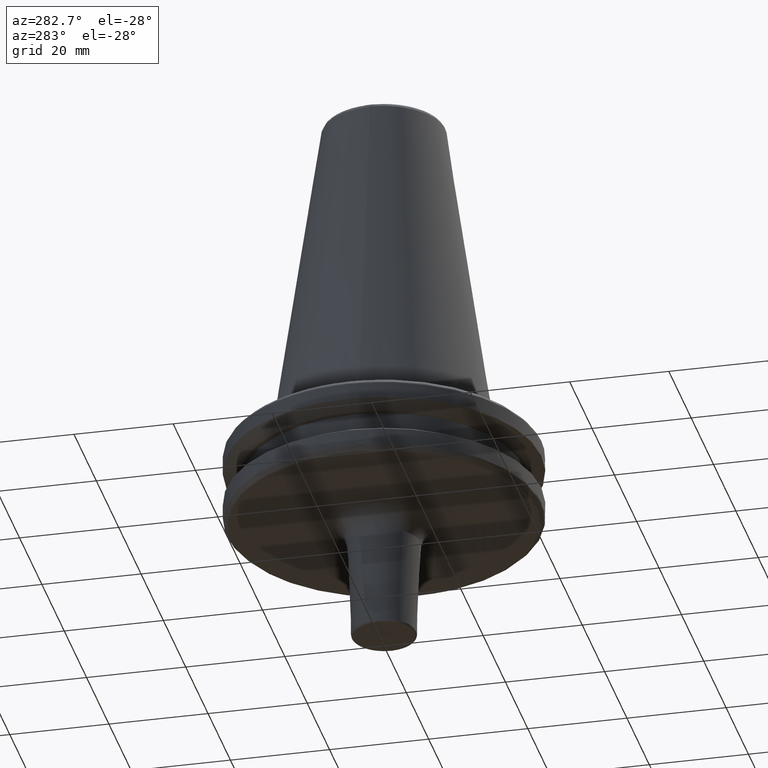
[diagram: clean part render]
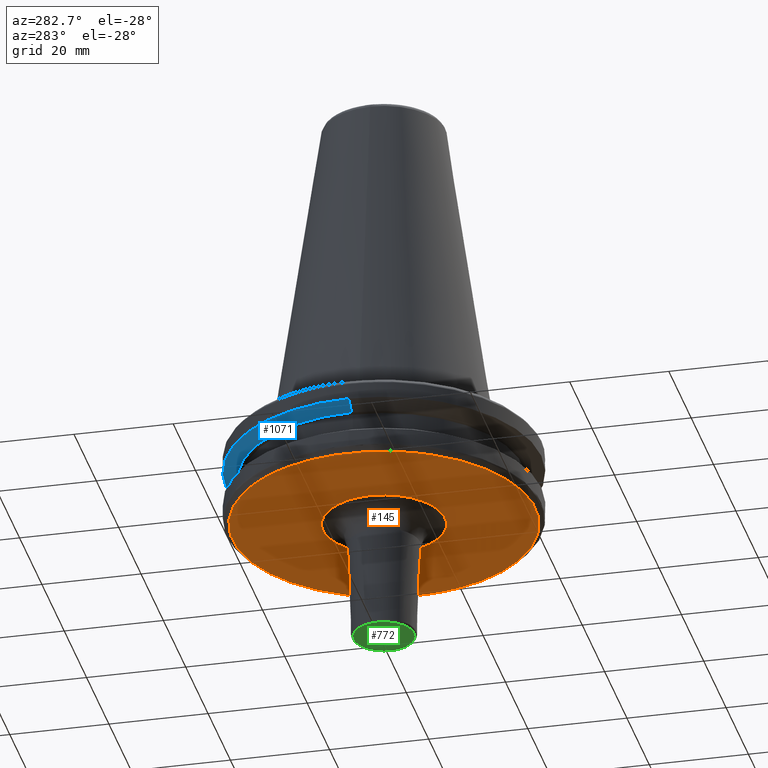
[diagram: same view with three faces highlighted in distinct colors, each labeled with its STEP entity id]
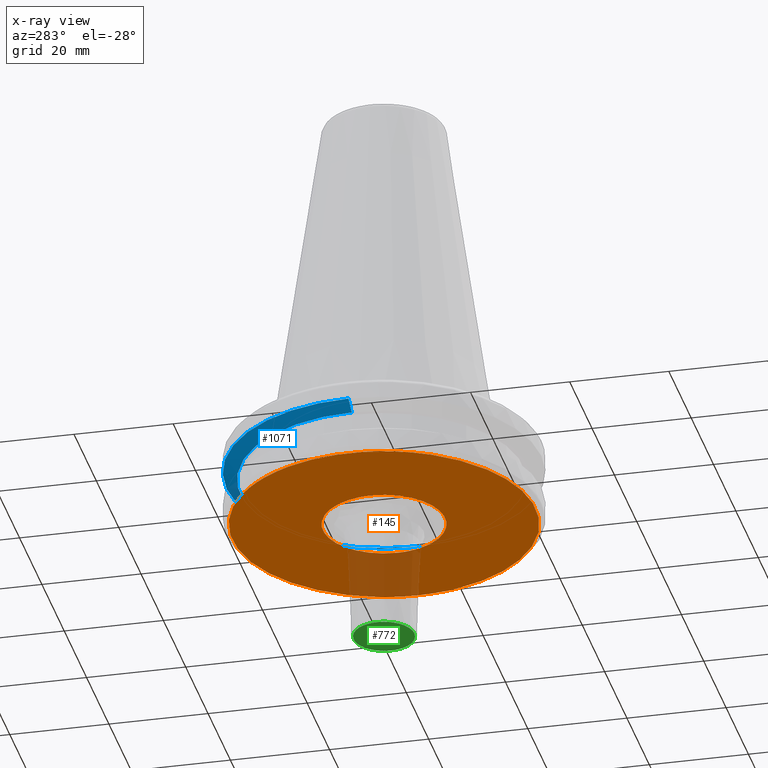
[diagram: x-ray of the same camera — body ghosted, the three highlighted faces saturated]
A machine part, auxiliary view with three faces highlighted in distinct colors.
The next image is the same camera in x-ray (body ghosted, the three faces saturated) — at least one of them is partly hidden behind the body in this view.
Their STEP definitions:

[orange] entity #145 — the highlighted planar face has unit normal (0, 0, -1).
#1 = CARTESIAN_POINT ( 'NONE',  ( 4.575392748205827900, 11.42175958990457500, -19.10000000000000900 ) ) ;
#4 = CARTESIAN_POINT ( 'NONE',  ( 28.94006249014968200, -9.948882374008352500, -19.10000000000000500 ) ) ;
#5 = CARTESIAN_POINT ( 'NONE',  ( 6.115198462860785600, -10.68037323255987700, -19.10000000000000900 ) ) ;
#9 = CARTESIAN_POINT ( 'NONE',  ( -1.589759293087005000, 12.20345401369129600, -19.09999999999999800 ) ) ;
#22 = CARTESIAN_POINT ( 'NONE',  ( -4.915476880711798600, 11.28714439127464800, -19.10000000000000500 ) ) ;
#24 = CARTESIAN_POINT ( 'NONE',  ( 12.08943301081180600, -2.287919376571267500, -19.10000000000000500 ) ) ;
#25 = CARTESIAN_POINT ( 'NONE',  ( -13.55750927079556900, -27.41669403125807100, -19.10000000000000500 ) ) ;
#36 = CARTESIAN_POINT ( 'NONE',  ( -10.23999782691165800, 6.821555645404587600, -19.10000000000000900 ) ) ;
#39 = CARTESIAN_POINT ( 'NONE',  ( 12.09430829095980900, -2.261992835330791900, -19.10000000000000900 ) ) ;
#40 = CARTESIAN_POINT ( 'NONE',  ( 29.50593695870423600, -8.050011641059509100, -19.10000000000000500 ) ) ;
#43 = CARTESIAN_POINT ( 'NONE',  ( 5.480785904378152800, -11.02970206514304000, -19.10000000000000900 ) ) ;
#44 = CARTESIAN_POINT ( 'NONE',  ( -12.06578574603771700, 2.410312631624923300, -19.10000000000000500 ) ) ;
#46 = CARTESIAN_POINT ( 'NONE',  ( 28.04473044301726900, -12.20290262157235800, -19.10000000000000100 ) ) ;
#49 = CARTESIAN_POINT ( 'NONE',  ( 28.18215722315982000, -11.88429583552771100, -19.10000000000000100 ) ) ;
#52 = CARTESIAN_POINT ( 'NONE',  ( 4.915476880713528700, -11.28714439127365500, -19.10000000000000100 ) ) ;
#58 = CARTESIAN_POINT ( 'NONE',  ( 28.44748858146412100, -11.24368615697392600, -19.10000000000000100 ) ) ;
#59 = CARTESIAN_POINT ( 'NONE',  ( 25.07711885281372900, 17.51959354323408400, -19.10000000000000100 ) ) ;
#68 = CARTESIAN_POINT ( 'NONE',  ( 4.480731697625304700, -11.45923494211556500, -19.10000000000000500 ) ) ;
#70 = CARTESIAN_POINT ( 'NONE',  ( 27.92527061286967100, -12.47325821572505000, -19.10000000000000900 ) ) ;
#77 = CARTESIAN_POINT ( 'NONE',  ( 12.06578574603750900, -2.410312631625060000, -19.10000000000000100 ) ) ;
#78 = CARTESIAN_POINT ( 'NONE',  ( 27.94464134489557200, -12.42979159005786200, -19.10000000000001200 ) ) ;
#79 = CARTESIAN_POINT ( 'NONE',  ( -29.50593695870423600, 8.050011641059509100, -19.10000000000000500 ) ) ;
#82 = CARTESIAN_POINT ( 'NONE',  ( 27.98481301560113700, -12.33908451847029400, -19.10000000000000500 ) ) ;
#83 = DIRECTION ( 'NONE',  ( 1.000000000000000000, 0.0000000000000000000, 0.0000000000000000000 ) ) ;
#87 = CARTESIAN_POINT ( 'NONE',  ( 26.29437709911257700, -15.63042418696883700, -19.10000000000000500 ) ) ;
#88 = CARTESIAN_POINT ( 'NONE',  ( 12.08006102940357900, -2.336902098186763000, -19.10000000000000900 ) ) ;
#95 = CARTESIAN_POINT ( 'NONE',  ( 4.436158478003198600, -11.47655590212973000, -19.10000000000000500 ) ) ;
#102 = CARTESIAN_POINT ( 'NONE',  ( 11.95521051104275000, -2.921072465430901000, -19.10000000000000500 ) ) ;
#103 = CARTESIAN_POINT ( 'NONE',  ( 27.01453231070431500, -14.38112937620777400, -19.10000000000000900 ) ) ;
#108 = CARTESIAN_POINT ( 'NONE',  ( 29.29697359829781100, -8.815762972852718700, -19.10000000000000500 ) ) ;
#113 = CARTESIAN_POINT ( 'NONE',  ( 27.56587331839861600, -13.27428387458943800, -19.09999999999999800 ) ) ;
#121 = CARTESIAN_POINT ( 'NONE',  ( 4.343033924115247600, -11.51212651323082300, -19.10000000000000900 ) ) ;
#129 = CARTESIAN_POINT ( 'NONE',  ( 25.63623530936496000, -16.67892256050461000, -19.10000000000000500 ) ) ;
#134 = CARTESIAN_POINT ( 'NONE',  ( 25.72060642469137200, -16.54900938329657500, -19.10000000000000500 ) ) ;
#139 = CARTESIAN_POINT ( 'NONE',  ( 10.09123774697887800, -7.041000886252597000, -19.10000000000000900 ) ) ;
#145 = ADVANCED_FACE ( 'NONE', ( #2905, #1847 ), #1008, .T. ) ;
#147 = CARTESIAN_POINT ( 'NONE',  ( 2.103333420339649000, 30.51262227300270200, -19.10000000000000100 ) ) ;
#151 = CARTESIAN_POINT ( 'NONE',  ( 25.91506848432963000, -16.24456535706762800, -19.10000000000000500 ) ) ;
#159 = CARTESIAN_POINT ( 'NONE',  ( 25.05482143306667100, -17.56072154682019400, -19.10000000000000500 ) ) ;
#177 = CARTESIAN_POINT ( 'NONE',  ( 9.876681215558880600, -7.343069720023934500, -19.10000000000000900 ) ) ;
#181 = CARTESIAN_POINT ( 'NONE',  ( 12.23810548582505600, 28.03197362945626700, -19.10000000000000500 ) ) ;
#185 = CARTESIAN_POINT ( 'NONE',  ( 9.425359613257528600, -7.929015022567612400, -19.10000000000000900 ) ) ;
#202 = CARTESIAN_POINT ( 'NONE',  ( 25.55219655712748800, -16.80738867178014600, -19.10000000000000900 ) ) ;
#206 = CARTESIAN_POINT ( 'NONE',  ( -17.19359987793792800, -25.35249706495551100, -19.10000000000000900 ) ) ;
#209 = CARTESIAN_POINT ( 'NONE',  ( 25.57975895856417400, -16.76540627108043000, -19.10000000000000100 ) ) ;
#213 = CARTESIAN_POINT ( 'NONE',  ( 22.88153702451384300, -20.29572449130178000, -19.10000000000000100 ) ) ;
#216 = CARTESIAN_POINT ( 'NONE',  ( 9.000440743636914900, -8.400066941892452700, -19.10000000000000100 ) ) ;
#218 = CARTESIAN_POINT ( 'NONE',  ( 5.091218007676277900, -30.15789762491641200, -19.10000000000000900 ) ) ;
#219 = CARTESIAN_POINT ( 'NONE',  ( 23.37016937102523100, -19.73720656645907200, -19.10000000000000500 ) ) ;
#220 = CARTESIAN_POINT ( 'NONE',  ( 4.938364931540699700, -30.18303432026915800, -19.10000000000000500 ) ) ;
#224 = CARTESIAN_POINT ( 'NONE',  ( 8.099840628484033200, -9.300588231972975400, -19.10000000000000500 ) ) ;
#226 = CARTESIAN_POINT ( 'NONE',  ( -8.158427338735364700, -29.48125659895528400, -19.10000000000000500 ) ) ;
#227 = CARTESIAN_POINT ( 'NONE',  ( 28.22432639104233900, 11.78107541670503600, -19.10000000000000500 ) ) ;
#228 = CARTESIAN_POINT ( 'NONE',  ( 7.443544722013345300, -9.833810078318924400, -19.10000000000000500 ) ) ;
#234 = CARTESIAN_POINT ( 'NONE',  ( 24.31095900104777700, -18.59161355311120500, -19.10000000000000900 ) ) ;
#240 = CARTESIAN_POINT ( 'NONE',  ( 22.45416143053250800, -20.76589565598027000, -19.10000000000000500 ) ) ;
#248 = CARTESIAN_POINT ( 'NONE',  ( 29.50593695870423600, -8.050011641059509100, -19.10000000000000500 ) ) ;
#250 = CARTESIAN_POINT ( 'NONE',  ( 22.52513206187470700, -20.68888644021010800, -19.10000000000000900 ) ) ;
#254 = CARTESIAN_POINT ( 'NONE',  ( 22.66821511925894200, -20.53202962012767000, -19.10000000000000500 ) ) ;
#255 = CARTESIAN_POINT ( 'NONE',  ( 6.644033331915112600, -10.35646410111086300, -19.10000000000000900 ) ) ;
#256 = CARTESIAN_POINT ( 'NONE',  ( 11.51212651323263500, 4.343033924110140600, -19.10000000000000500 ) ) ;
#259 = CARTESIAN_POINT ( 'NONE',  ( -4.391022105728267500, -30.26774995785368500, -19.10000000000000500 ) ) ;
#266 = CARTESIAN_POINT ( 'NONE',  ( 7.343069720027355800, 9.876681215557251600, -19.10000000000000500 ) ) ;
#267 = CARTESIAN_POINT ( 'NONE',  ( 17.87849741863398000, -24.82948193938068100, -19.10000000000000100 ) ) ;
#270 = CARTESIAN_POINT ( 'NONE',  ( 6.558184842527504400, -10.41102762153246500, -19.10000000000000500 ) ) ;
#275 = CARTESIAN_POINT ( 'NONE',  ( 19.93308098988654800, -23.26029377377305400, -19.10000000000000900 ) ) ;
#276 = CARTESIAN_POINT ( 'NONE',  ( 3.593781843145289900, 11.77938152722883200, -19.10000000000000500 ) ) ;
#281 = CARTESIAN_POINT ( 'NONE',  ( 6.381707851683468200, -10.52016527886050300, -19.10000000000000500 ) ) ;
#282 = AXIS2_PLACEMENT_3D ( 'NONE', #381, #1790, #1290 ) ;
#287 = CARTESIAN_POINT ( 'NONE',  ( -2.076837830438892100, 12.12761394368718200, -19.10000000000000900 ) ) ;
#292 = CARTESIAN_POINT ( 'NONE',  ( -4.636279539811212700, -30.23090493186514000, -19.10000000000000100 ) ) ;
#295 = CARTESIAN_POINT ( 'NONE',  ( 3.874865910807504300, -11.68097384937162700, -19.10000000000000500 ) ) ;
#297 = CARTESIAN_POINT ( 'NONE',  ( -6.115198462858513700, 10.68037323256118000, -19.10000000000000500 ) ) ;
#302 = CARTESIAN_POINT ( 'NONE',  ( 21.20610461385350800, -22.10596665135101400, -19.10000000000000100 ) ) ;
#303 = CARTESIAN_POINT ( 'NONE',  ( -10.52583497655445300, 6.385010041784552100, -19.10000000000000100 ) ) ;
#304 = CARTESIAN_POINT ( 'NONE',  ( -1.980707750522268800, -30.53825656188765000, -19.10000000000000900 ) ) ;
#308 = CARTESIAN_POINT ( 'NONE',  ( 3.211499383865427300, -11.88929713640017200, -19.10000000000000900 ) ) ;
#311 = CARTESIAN_POINT ( 'NONE',  ( -12.08943301081187200, 2.287919376571226200, -19.10000000000000500 ) ) ;
#314 = CARTESIAN_POINT ( 'NONE',  ( 14.88253584773120200, -26.72066063288397000, -19.10000000000000100 ) ) ;
#315 = VERTEX_POINT ( 'NONE', #1421 ) ;
#325 = CARTESIAN_POINT ( 'NONE',  ( 15.53753395421813000, -26.34988902405435600, -19.10000000000000900 ) ) ;
#327 = CARTESIAN_POINT ( 'NONE',  ( 16.82180190648200500, -25.56823429586928900, -19.10000000000000500 ) ) ;
#330 = CARTESIAN_POINT ( 'NONE',  ( 12.03095557274064500, -2.581159033419818900, -19.10000000000000900 ) ) ;
#331 = CARTESIAN_POINT ( 'NONE',  ( 14.31298725537405200, -27.02868588326913700, -19.10000000000000500 ) ) ;
#357 = CARTESIAN_POINT ( 'NONE',  ( -28.29883549210119800, 11.76494105805098300, -19.10000000000000500 ) ) ;
#360 = CARTESIAN_POINT ( 'NONE',  ( 2.631076435339338500, -12.02602693486898400, -19.10000000000000500 ) ) ;
#369 = CARTESIAN_POINT ( 'NONE',  ( 14.40947314747780600, -26.97737969063206300, -19.10000000000000500 ) ) ;
#370 = CARTESIAN_POINT ( 'NONE',  ( 2.214360397885292800, -12.10312272759740000, -19.10000000000000500 ) ) ;
#373 = CARTESIAN_POINT ( 'NONE',  ( 14.58823882257053300, 26.89349445919003000, -19.10000000000000500 ) ) ;
#376 = CARTESIAN_POINT ( 'NONE',  ( 14.59906577416073300, -26.87526508911176700, -19.10000000000000500 ) ) ;
#381 = CARTESIAN_POINT ( 'NONE',  ( 0.0000000000000000000, 2.166680460328873200E-015, -19.10000000000000500 ) ) ;
#394 = DIRECTION ( 'NONE',  ( 1.000000000000000000, 0.0000000000000000000, 0.0000000000000000000 ) ) ;
#408 = B_SPLINE_CURVE_WITH_KNOTS ( 'NONE', 3,
 ( #2214, #1030, #2191, #2167, #503, #2146, #2131, #2111, #2068, #2024, #1876, #1866, #1855, #1805, #1766, #1783, #1761, #1677, #1673, #1667, #1651, #1645, #1609, #1596, #1458, #1364, #2953, #1266, #1092, #1088, #1024, #962, #850, #826, #800, #782, #761, #2942, #755, #745, #732, #707, #624, #599, #573, #567, #552, #512, #2913, #485, #478, #475, #462, #445, #418, #370, #360, #308, #295, #2899, #121, #95, #68, #52, #43, #5, #281, #270, #255, #228, #224, #216, #185, #177, #139, #1062, #1101, #1040, #1051, #823, #855, #616, #806, #561, #571, #535, #549, #102, #330, #77, #88, #24, #39, #1500, #1479, #1472 ),
 .UNSPECIFIED., .F., .F.,
 ( 4, 1, 1, 1, 1, 2, 2, 1, 1, 1, 2, 2, 1, 1, 2, 2, 2, 1, 1, 1, 2, 2, 1, 1, 1, 2, 2, 1, 1, 1, 1, 2, 2, 2, 1, 1, 1, 1, 2, 2, 1, 1, 1, 2, 2, 1, 1, 2, 2, 2, 1, 1, 1, 2, 2, 1, 1, 1, 2, 2, 1, 1, 1, 1, 2, 2, 4 ),
 ( 0.0000000000000000000, 0.03124999999999987500, 0.04687499999999980600, 0.05468749999999976400, 0.05859374999999975700, 0.06054687499999977800, 0.06249999999999979200, 0.09375000000000027800, 0.1093750000000005300, 0.1171875000000006700, 0.1210937500000006900, 0.1250000000000007200, 0.1562500000000008600, 0.1718750000000008900, 0.1796875000000009700, 0.1875000000000010500, 0.2500000000000017800, 0.2812500000000022200, 0.2968750000000023900, 0.3046875000000025000, 0.3085937500000026100, 0.3125000000000026600, 0.3437500000000034400, 0.3593750000000038300, 0.3671875000000040500, 0.3710937500000041100, 0.3750000000000042200, 0.4062500000000047200, 0.4218750000000049400, 0.4296875000000050000, 0.4335937500000050500, 0.4355468750000050500, 0.4375000000000050000, 0.5000000000000057700, 0.5312500000000062200, 0.5468750000000063300, 0.5546875000000064400, 0.5585937500000065500, 0.5605468750000065500, 0.5625000000000065500, 0.5937500000000063300, 0.6093750000000061100, 0.6171875000000060000, 0.6210937500000060000, 0.6250000000000058800, 0.6562500000000055500, 0.6718750000000055500, 0.6796875000000055500, 0.6875000000000054400, 0.7500000000000050000, 0.7812500000000047700, 0.7968750000000045500, 0.8046875000000045500, 0.8085937500000045500, 0.8125000000000045500, 0.8437500000000042200, 0.8593750000000040000, 0.8671875000000038900, 0.8710937500000038900, 0.8750000000000037700, 0.9062500000000030000, 0.9218750000000026600, 0.9296875000000024400, 0.9335937500000022200, 0.9355468750000021100, 0.9375000000000020000, 1.000000000000000000 ),
 .UNSPECIFIED. ) ;
#418 = CARTESIAN_POINT ( 'NONE',  ( 2.192594682798156400, -12.10708159028217600, -19.10000000000000500 ) ) ;
#432 = CARTESIAN_POINT ( 'NONE',  ( -25.46428937167067700, -16.94027857338939600, -19.10000000000000500 ) ) ;
#443 = CARTESIAN_POINT ( 'NONE',  ( -0.7936655208069568500, -30.58432798036122000, -19.10000000000000100 ) ) ;
#445 = CARTESIAN_POINT ( 'NONE',  ( 2.146298889790486000, -12.11537480820234700, -19.10000000000000500 ) ) ;
#462 = CARTESIAN_POINT ( 'NONE',  ( 2.076837830443977000, -12.12761394368692600, -19.10000000000000500 ) ) ;
#475 = CARTESIAN_POINT ( 'NONE',  ( 1.914640436457104800, -12.15476708671448600, -19.10000000000000500 ) ) ;
#476 = CARTESIAN_POINT ( 'NONE',  ( 12.27832206123967400, 0.9382049300609607300, -19.10000000000000500 ) ) ;
#478 = CARTESIAN_POINT ( 'NONE',  ( 1.589759293103282200, -12.20345401369049100, -19.10000000000000500 ) ) ;
#481 = CARTESIAN_POINT ( 'NONE',  ( 11.45923494211533700, 4.480731697625743400, -19.10000000000000500 ) ) ;
#483 = ORIENTED_EDGE ( 'NONE', *, *, #575, .T. ) ;
#485 = CARTESIAN_POINT ( 'NONE',  ( 0.9380515848753250300, -12.27835043132595900, -19.10000000000000900 ) ) ;
#494 = CARTESIAN_POINT ( 'NONE',  ( 6.909593632673329800, 10.18081105978744100, -19.10000000000000500 ) ) ;
#503 = CARTESIAN_POINT ( 'NONE',  ( -12.15475467480174200, -1.914707524983862100, -19.10000000000000500 ) ) ;
#512 = CARTESIAN_POINT ( 'NONE',  ( -0.7522199390045507500, -12.30396597832296700, -19.10000000000001200 ) ) ;
#513 = CARTESIAN_POINT ( 'NONE',  ( 2.581159033422415000, 12.03095557274000200, -19.10000000000000500 ) ) ;
#521 = CARTESIAN_POINT ( 'NONE',  ( -2.192594682796630500, 12.10708159028225200, -19.10000000000000100 ) ) ;
#530 = CARTESIAN_POINT ( 'NONE',  ( -6.558184842526693500, 10.41102762153293100, -19.10000000000000900 ) ) ;
#535 = CARTESIAN_POINT ( 'NONE',  ( 11.58694720896247600, -4.158188476065937800, -19.10000000000000900 ) ) ;
#545 = CARTESIAN_POINT ( 'NONE',  ( -11.15587931217965000, 5.197345420173148200, -19.10000000000000500 ) ) ;
#549 = CARTESIAN_POINT ( 'NONE',  ( 11.77938152723029600, -3.593781843139356000, -19.10000000000000500 ) ) ;
#552 = CARTESIAN_POINT ( 'NONE',  ( -1.499217098364941300, -12.23549570778275200, -19.10000000000001200 ) ) ;
#557 = CARTESIAN_POINT ( 'NONE',  ( -12.23552816117459100, 1.499041766447427600, -19.09999999999999800 ) ) ;
#561 = CARTESIAN_POINT ( 'NONE',  ( 11.40154084273800600, -4.625572914648119000, -19.10000000000000500 ) ) ;
#562 = CARTESIAN_POINT ( 'NONE',  ( -20.23907096310340100, -22.95838911900774100, -19.10000000000000500 ) ) ;
#567 = CARTESIAN_POINT ( 'NONE',  ( -2.261987356208513300, -12.09430930512829900, -19.09999999999999800 ) ) ;
#571 = CARTESIAN_POINT ( 'NONE',  ( 11.42175958990446500, -4.575392748206257700, -19.10000000000000500 ) ) ;
#573 = CARTESIAN_POINT ( 'NONE',  ( -2.287919376571583700, -12.08943301081174400, -19.10000000000000500 ) ) ;
#575 = EDGE_CURVE ( 'NONE', #1414, #1607, #2754, .T. ) ;
#590 = CARTESIAN_POINT ( 'NONE',  ( -7.396785857642844200, 29.70357443817780300, -19.10000000000000100 ) ) ;
#599 = CARTESIAN_POINT ( 'NONE',  ( -2.336902098187377600, -12.08006102940346300, -19.10000000000000500 ) ) ;
#608 = AXIS2_PLACEMENT_3D ( 'NONE', #2865, #1513, #83 ) ;
#616 = CARTESIAN_POINT ( 'NONE',  ( 11.30206053190039700, -4.865318118943555700, -19.10000000000000100 ) ) ;
#624 = CARTESIAN_POINT ( 'NONE',  ( -2.410312631626109000, -12.06578574603731500, -19.10000000000000900 ) ) ;
#627 = CARTESIAN_POINT ( 'NONE',  ( -25.54018883534800800, 16.93931054832113100, -19.10000000000000500 ) ) ;
#637 = CARTESIAN_POINT ( 'NONE',  ( -3.335826507667983200, 30.41349938460541600, -19.10000000000000100 ) ) ;
#650 = CARTESIAN_POINT ( 'NONE',  ( 26.66158410836062100, 14.98553842598051500, -19.10000000000000500 ) ) ;
#670 = CARTESIAN_POINT ( 'NONE',  ( -24.35471234555335200, 18.50002675126641800, -19.10000000000000500 ) ) ;
#676 = B_SPLINE_CURVE_WITH_KNOTS ( 'NONE', 3,
 ( #40, #108, #4, #58, #49, #46, #82, #78, #70, #113, #103, #87, #151, #134, #129, #209, #202, #159, #234, #219, #213, #254, #250, #240, #302, #275, #267, #327, #325, #314, #376, #369, #331, #2917, #2951, #2980, #3010, #2704, #2699, #1444, #2784, #1612, #1869, #1792, #2821, #218, #220, #840, #825, #815, #808, #443, #304, #769, #1840, #259, #2536, #292, #938, #2365, #1682, #226, #926, #941, #1857, #1981, #1437, #1617, #2171, #2503, #25, #2555, #1189, #2060, #1715, #206, #1913, #562, #2859, #1283, #1629, #964, #2741, #1029, #1257, #1087, #1952, #787, #775, #432, #2247, #1879, #2576, #1402, #2648, #1904, #1666, #1676, #735, #2963, #1391, #2920 ),
 .UNSPECIFIED., .F., .F.,
 ( 4, 1, 1, 1, 1, 2, 2, 1, 1, 1, 1, 2, 2, 1, 1, 1, 2, 2, 2, 1, 1, 1, 2, 2, 1, 1, 1, 1, 2, 2, 1, 1, 1, 1, 2, 2, 2, 1, 1, 1, 1, 2, 2, 1, 1, 1, 1, 2, 2, 1, 1, 1, 2, 2, 2, 1, 1, 1, 2, 2, 1, 1, 1, 1, 2, 2, 1, 1, 1, 1, 2, 2, 4 ),
 ( 0.0000000000000000000, 0.03125000000000043000, 0.04687500000000063800, 0.05468750000000073600, 0.05859375000000075600, 0.06054687500000074200, 0.06250000000000072200, 0.09375000000000025000, 0.1093750000000000400, 0.1171874999999999200, 0.1210937499999997900, 0.1230468749999997600, 0.1249999999999997400, 0.1562499999999992200, 0.1718749999999989700, 0.1796874999999988600, 0.1835937499999988100, 0.1874999999999987500, 0.2499999999999989500, 0.2812499999999990000, 0.2968749999999991100, 0.3046874999999991700, 0.3085937499999991700, 0.3124999999999991100, 0.3437499999999990600, 0.3593749999999990600, 0.3671874999999990600, 0.3710937499999991100, 0.3730468749999991700, 0.3749999999999991700, 0.4062499999999991100, 0.4218749999999990600, 0.4296874999999990600, 0.4335937499999990600, 0.4355468749999990600, 0.4374999999999990600, 0.4999999999999995000, 0.5312499999999997800, 0.5468749999999998900, 0.5546875000000000000, 0.5585937500000000000, 0.5605468750000001100, 0.5625000000000001100, 0.5937500000000005600, 0.6093750000000007800, 0.6171875000000008900, 0.6210937500000008900, 0.6230468750000008900, 0.6250000000000008900, 0.6562500000000010000, 0.6718750000000010000, 0.6796875000000010000, 0.6835937500000011100, 0.6875000000000011100, 0.7500000000000013300, 0.7812500000000013300, 0.7968750000000013300, 0.8046875000000013300, 0.8085937500000012200, 0.8125000000000012200, 0.8437500000000014400, 0.8593750000000015500, 0.8671875000000015500, 0.8710937500000015500, 0.8730468750000015500, 0.8750000000000015500, 0.9062500000000016700, 0.9218750000000017800, 0.9296875000000017800, 0.9335937500000017800, 0.9355468750000017800, 0.9375000000000017800, 1.000000000000000000 ),
 .UNSPECIFIED. ) ;
#684 = CARTESIAN_POINT ( 'NONE',  ( 18.64294495310518600, 24.24904771131965500, -19.10000000000000900 ) ) ;
#692 = CARTESIAN_POINT ( 'NONE',  ( 5.798126224598956200, 30.03039269424756300, -19.10000000000000100 ) ) ;
#697 = CARTESIAN_POINT ( 'NONE',  ( 12.92802695592982500, 27.71772311958008600, -19.10000000000000900 ) ) ;
#703 = CIRCLE ( 'NONE', #608, 30.58435880041008700 ) ;
#707 = CARTESIAN_POINT ( 'NONE',  ( -2.581159033421773300, -12.03095557274028600, -19.10000000000000900 ) ) ;
#711 = CARTESIAN_POINT ( 'NONE',  ( 19.38055795302008400, 23.66050113822976500, -19.10000000000001200 ) ) ;
#718 = ORIENTED_EDGE ( 'NONE', *, *, #2955, .T. ) ;
#724 = VERTEX_POINT ( 'NONE', #670 ) ;
#731 = CARTESIAN_POINT ( 'NONE',  ( 15.99211500375794700, 26.07096171698068000, -19.10000000000000900 ) ) ;
#732 = CARTESIAN_POINT ( 'NONE',  ( -2.921072465434252600, -11.95521051104213400, -19.10000000000000900 ) ) ;
#733 = CARTESIAN_POINT ( 'NONE',  ( -12.30399840127872200, 1.506805225884013700E-015, -19.10000000000000500 ) ) ;
#735 = CARTESIAN_POINT ( 'NONE',  ( -27.88382002489398900, -12.56563911166203700, -19.10000000000000900 ) ) ;
#743 = CARTESIAN_POINT ( 'NONE',  ( 6.256069620680725600, 29.93772805485906800, -19.10000000000000900 ) ) ;
#745 = CARTESIAN_POINT ( 'NONE',  ( -3.593781843143816400, -11.77938152722946300, -19.10000000000000100 ) ) ;
#750 = CARTESIAN_POINT ( 'NONE',  ( 12.15475467480173700, 1.914707524975818300, -19.09999999999999800 ) ) ;
#755 = CARTESIAN_POINT ( 'NONE',  ( -4.158188476068488600, -11.58694720896200400, -19.10000000000000900 ) ) ;
#761 = CARTESIAN_POINT ( 'NONE',  ( -4.625572914649064100, -11.40154084273750700, -19.10000000000001200 ) ) ;
#764 = CARTESIAN_POINT ( 'NONE',  ( 11.02970206514631500, 5.480785904371954200, -19.10000000000000500 ) ) ;
#769 = CARTESIAN_POINT ( 'NONE',  ( -3.359542261740482900, -30.40384640239971500, -19.10000000000000500 ) ) ;
#773 = CARTESIAN_POINT ( 'NONE',  ( 6.776350166943471400, 10.26996098883152400, -19.10000000000000500 ) ) ;
#775 = CARTESIAN_POINT ( 'NONE',  ( -25.40531514043783900, -17.02859819238312900, -19.10000000000000500 ) ) ;
#782 = CARTESIAN_POINT ( 'NONE',  ( -4.721653314928516900, -11.36209706048007100, -19.10000000000000100 ) ) ;
#783 = CARTESIAN_POINT ( 'NONE',  ( 2.336902098187575700, 12.08006102940337600, -19.10000000000000500 ) ) ;
#786 = CARTESIAN_POINT ( 'NONE',  ( 24.03691940912555600, 18.91573389369128600, -19.10000000000000500 ) ) ;
#787 = CARTESIAN_POINT ( 'NONE',  ( -25.31652938757393300, -17.16082103678996200, -19.10000000000000100 ) ) ;
#796 = CARTESIAN_POINT ( 'NONE',  ( -2.631076435329491300, 12.02602693487259500, -19.10000000000000900 ) ) ;
#800 = CARTESIAN_POINT ( 'NONE',  ( -4.865318118946534700, -11.30206053189878700, -19.10000000000000500 ) ) ;
#803 = CARTESIAN_POINT ( 'NONE',  ( -7.443544722004620700, 9.833810078324919600, -19.10000000000001200 ) ) ;
#805 = CARTESIAN_POINT ( 'NONE',  ( -18.50002675274544500, 24.35471234442987100, -19.10000000000000500 ) ) ;
#806 = CARTESIAN_POINT ( 'NONE',  ( 11.36209706048103900, -4.721653314926724600, -19.10000000000000500 ) ) ;
#808 = CARTESIAN_POINT ( 'NONE',  ( 1.587331041613742700, -30.58428776442982800, -19.10000000000000500 ) ) ;
#812 = CARTESIAN_POINT ( 'NONE',  ( -11.36209706048117200, 4.721653314925952700, -19.10000000000000900 ) ) ;
#814 = CARTESIAN_POINT ( 'NONE',  ( 19.01361294775681200, 23.95638265829615000, -19.09999999999999800 ) ) ;
#815 = CARTESIAN_POINT ( 'NONE',  ( 3.166151006705770800, -30.46140382597060600, -19.10000000000001200 ) ) ;
#818 = CARTESIAN_POINT ( 'NONE',  ( 22.71169545599505600, 20.49349008205810900, -19.10000000000000900 ) ) ;
#821 = CARTESIAN_POINT ( 'NONE',  ( -12.30399840127872200, 1.506805225884013700E-015, -19.10000000000000500 ) ) ;
#823 = CARTESIAN_POINT ( 'NONE',  ( 10.83913292727201000, -5.848637723408895500, -19.10000000000000500 ) ) ;
#825 = CARTESIAN_POINT ( 'NONE',  ( 4.783350766199017600, -30.20798338819395200, -19.10000000000000500 ) ) ;
#826 = CARTESIAN_POINT ( 'NONE',  ( -5.197345420180442800, -11.15587931217654300, -19.10000000000000500 ) ) ;
#840 = CARTESIAN_POINT ( 'NONE',  ( 4.836401133027773200, -30.19953865469284100, -19.10000000000000100 ) ) ;
#844 = CARTESIAN_POINT ( 'NONE',  ( -18.50002675274544500, 24.35471234442987100, -19.10000000000000500 ) ) ;
#850 = CARTESIAN_POINT ( 'NONE',  ( -5.848637723415699000, -10.83913292726833800, -19.10000000000000500 ) ) ;
#853 = CARTESIAN_POINT ( 'NONE',  ( 26.46695125748617600, 15.32790333300081500, -19.10000000000000900 ) ) ;
#855 = CARTESIAN_POINT ( 'NONE',  ( 11.15587931217929800, -5.197345420175336600, -19.10000000000000500 ) ) ;
#860 = CARTESIAN_POINT ( 'NONE',  ( 0.4531822849060669900, 30.59235866177671400, -19.10000000000000500 ) ) ;
#861 = CARTESIAN_POINT ( 'NONE',  ( 26.58403738893923300, 15.12268211273652300, -19.10000000000000100 ) ) ;
#877 = CARTESIAN_POINT ( 'NONE',  ( 12.72171218949350900, 27.81364574513149900, -19.10000000000000900 ) ) ;
#887 = CARTESIAN_POINT ( 'NONE',  ( -8.767786026824518700, 29.30104552520869300, -19.10000000000000500 ) ) ;
#897 = CARTESIAN_POINT ( 'NONE',  ( 29.18634062978594200, 9.221269143563914000, -19.10000000000000500 ) ) ;
#913 = CARTESIAN_POINT ( 'NONE',  ( -8.917516567687371800, 29.25582015750815400, -19.10000000000000500 ) ) ;
#925 = CARTESIAN_POINT ( 'NONE',  ( 13.06536007812701200, 27.65325169537482700, -19.10000000000000100 ) ) ;
#926 = CARTESIAN_POINT ( 'NONE',  ( -8.850750154841392700, -29.27696876187939500, -19.10000000000000500 ) ) ;
#930 = CARTESIAN_POINT ( 'NONE',  ( 26.18838791784893500, 15.80329267786272900, -19.10000000000000500 ) ) ;
#938 = CARTESIAN_POINT ( 'NONE',  ( -4.683322544848318900, -30.22365628541788900, -19.10000000000000500 ) ) ;
#941 = CARTESIAN_POINT ( 'NONE',  ( -9.195643051181685100, -29.16949528698672400, -19.10000000000000900 ) ) ;
#962 = CARTESIAN_POINT ( 'NONE',  ( -6.385010041790111200, -10.52583497655208300, -19.10000000000000500 ) ) ;
#964 = CARTESIAN_POINT ( 'NONE',  ( -22.23347045905034500, -21.00201711043238700, -19.10000000000000100 ) ) ;
#965 = CARTESIAN_POINT ( 'NONE',  ( 21.40627702113345900, 21.88112117654264600, -19.10000000000000500 ) ) ;
#967 = CARTESIAN_POINT ( 'NONE',  ( 30.58435880041816200, 0.0000000000000000000, -19.10000000000000500 ) ) ;
#971 = CARTESIAN_POINT ( 'NONE',  ( 26.70070361132738800, 14.91571867381870400, -19.10000000000000100 ) ) ;
#974 = CARTESIAN_POINT ( 'NONE',  ( 27.46611760510352000, 13.47920850658973700, -19.10000000000000900 ) ) ;
#982 = CARTESIAN_POINT ( 'NONE',  ( -1.277990131494122400, 30.55800543620354400, -19.10000000000000500 ) ) ;
#991 = DIRECTION ( 'NONE',  ( -0.0000000000000000000, -0.0000000000000000000, 1.000000000000000000 ) ) ;
#997 = CARTESIAN_POINT ( 'NONE',  ( 12.11537091364809600, 2.146319940524676000, -19.10000000000000500 ) ) ;
#999 = CARTESIAN_POINT ( 'NONE',  ( -1.754889633223906300, 30.53434994063401200, -19.10000000000000500 ) ) ;
#1002 = CARTESIAN_POINT ( 'NONE',  ( 10.52016527886208200, 6.381707851680481300, -19.10000000000000500 ) ) ;
#1004 = CARTESIAN_POINT ( 'NONE',  ( -12.44675998882116000, 27.93716668423903100, -19.10000000000000500 ) ) ;
#1005 = CARTESIAN_POINT ( 'NONE',  ( -12.65743148084894200, 27.84302147053579500, -19.10000000000000500 ) ) ;
#1008 = PLANE ( 'NONE',  #282 ) ;
#1010 = CARTESIAN_POINT ( 'NONE',  ( 5.848637723409385800, 10.83913292727089400, -19.10000000000000500 ) ) ;
#1024 = CARTESIAN_POINT ( 'NONE',  ( -6.776350166943017500, -10.26996098883171300, -19.10000000000000500 ) ) ;
#1025 = CARTESIAN_POINT ( 'NONE',  ( 2.261987356208235300, 12.09430930512834300, -19.10000000000000500 ) ) ;
#1029 = CARTESIAN_POINT ( 'NONE',  ( -22.95981042903576300, -20.22301021334099100, -19.10000000000000900 ) ) ;
#1030 = CARTESIAN_POINT ( 'NONE',  ( -12.30399840127872200, -0.3761975953331360100, -19.10000000000000100 ) ) ;
#1032 = CARTESIAN_POINT ( 'NONE',  ( -3.874865910794570700, 11.68097384937635600, -19.10000000000000100 ) ) ;
#1037 = CARTESIAN_POINT ( 'NONE',  ( -9.000440743636756800, 8.400066941893980400, -19.10000000000000500 ) ) ;
#1040 = CARTESIAN_POINT ( 'NONE',  ( 10.26996098883145000, -6.776350166943503300, -19.10000000000000500 ) ) ;
#1049 = CARTESIAN_POINT ( 'NONE',  ( -11.42175958990440600, 4.575392748206296800, -19.10000000000000900 ) ) ;
#1051 = CARTESIAN_POINT ( 'NONE',  ( 10.52583497655418300, -6.385010041786225400, -19.10000000000000500 ) ) ;
#1062 = CARTESIAN_POINT ( 'NONE',  ( 10.18081105978801800, -6.909593632672125500, -19.10000000000000500 ) ) ;
#1075 = CARTESIAN_POINT ( 'NONE',  ( 0.0000000000000000000, 0.0000000000000000000, -19.10000000000000500 ) ) ;
#1076 = EDGE_CURVE ( 'NONE', #1492, #315, #2079, .T. ) ;
#1087 = CARTESIAN_POINT ( 'NONE',  ( -24.67913322280990200, -18.07380832753302600, -19.10000000000000500 ) ) ;
#1088 = CARTESIAN_POINT ( 'NONE',  ( -6.821555645405012100, -10.23999782691106800, -19.10000000000000500 ) ) ;
#1092 = CARTESIAN_POINT ( 'NONE',  ( -6.909593632673636200, -10.18081105978681600, -19.10000000000000500 ) ) ;
#1101 = CARTESIAN_POINT ( 'NONE',  ( 10.23999782691169000, -6.821555645404217200, -19.10000000000000500 ) ) ;
#1155 = CARTESIAN_POINT ( 'NONE',  ( 28.79848820868595600, 10.36927195262887700, -19.10000000000000500 ) ) ;
#1157 = CARTESIAN_POINT ( 'NONE',  ( 16.18968749047009200, 25.94803225022423700, -19.10000000000000900 ) ) ;
#1189 = CARTESIAN_POINT ( 'NONE',  ( -14.03061632106972200, -27.17633901377901000, -19.10000000000000900 ) ) ;
#1198 = CARTESIAN_POINT ( 'NONE',  ( 24.51742230446014800, 18.28446092688399100, -19.10000000000000500 ) ) ;
#1203 = CARTESIAN_POINT ( 'NONE',  ( 16.32111855271079600, 25.86556262578678700, -19.10000000000000100 ) ) ;
#1208 = CARTESIAN_POINT ( 'NONE',  ( -0.4908188656923748200, 30.58687863642091600, -19.10000000000000900 ) ) ;
#1233 = CARTESIAN_POINT ( 'NONE',  ( 12.10312272759716000, 2.214360397885985600, -19.10000000000000900 ) ) ;
#1243 = CARTESIAN_POINT ( 'NONE',  ( 10.35646410110988700, 6.644033331916425300, -19.10000000000000500 ) ) ;
#1255 = CARTESIAN_POINT ( 'NONE',  ( 4.865318118943767100, 11.30206053189991000, -19.10000000000000500 ) ) ;
#1257 = CARTESIAN_POINT ( 'NONE',  ( -23.78688261721307700, -19.25759772824421400, -19.10000000000000100 ) ) ;
#1261 = CARTESIAN_POINT ( 'NONE',  ( 0.7522199389797370500, 12.30396597832173600, -19.10000000000000500 ) ) ;
#1266 = CARTESIAN_POINT ( 'NONE',  ( -7.041000886255102600, -10.09123774697688700, -19.10000000000000100 ) ) ;
#1268 = CARTESIAN_POINT ( 'NONE',  ( -4.343033924110705400, 11.51212651323248600, -19.10000000000000500 ) ) ;
#1278 = CARTESIAN_POINT ( 'NONE',  ( -9.876681215558663900, 7.343069720025941800, -19.10000000000000900 ) ) ;
#1282 = CARTESIAN_POINT ( 'NONE',  ( -9.668279344121133400, 29.01896080072954100, -19.10000000000000500 ) ) ;
#1283 = CARTESIAN_POINT ( 'NONE',  ( -21.86129013470800300, -21.39082914621904400, -19.10000000000000100 ) ) ;
#1288 = CARTESIAN_POINT ( 'NONE',  ( 2.338937091250613300, 30.49485090081023100, -19.10000000000000100 ) ) ;
#1289 = CARTESIAN_POINT ( 'NONE',  ( -11.77938152723118900, 3.593781843138760900, -19.10000000000000900 ) ) ;
#1290 = DIRECTION ( 'NONE',  ( -1.000000000000000000, 0.0000000000000000000, -0.0000000000000000000 ) ) ;
#1295 = CIRCLE ( 'NONE', #1919, 30.58435880041008700 ) ;
#1297 = CARTESIAN_POINT ( 'NONE',  ( 29.50593695887979000, 8.050011640416025600, -19.10000000000000500 ) ) ;
#1309 = DIRECTION ( 'NONE',  ( 1.000000000000000000, 0.0000000000000000000, 0.0000000000000000000 ) ) ;
#1313 = CARTESIAN_POINT ( 'NONE',  ( 20.48123999505939400, 22.74936446789017100, -19.10000000000000100 ) ) ;
#1335 = CARTESIAN_POINT ( 'NONE',  ( 13.13240365255261600, 27.62148087363473100, -19.10000000000000500 ) ) ;
#1336 = VERTEX_POINT ( 'NONE', #2996 ) ;
#1348 = CARTESIAN_POINT ( 'NONE',  ( 2.575749856820219300, 30.47575675141769800, -19.10000000000000500 ) ) ;
#1358 = CARTESIAN_POINT ( 'NONE',  ( 11.26206975055332500, 28.44666309692501500, -19.10000000000000100 ) ) ;
#1364 = CARTESIAN_POINT ( 'NONE',  ( -7.929015022573338500, -9.425359613252993500, -19.10000000000000500 ) ) ;
#1374 = CARTESIAN_POINT ( 'NONE',  ( 4.194626064597124500, 30.30646449917461300, -19.10000000000000500 ) ) ;
#1388 = CARTESIAN_POINT ( 'NONE',  ( -6.159607642682074100, 29.98451923137153200, -19.10000000000000500 ) ) ;
#1391 = CARTESIAN_POINT ( 'NONE',  ( -29.08795742227681900, -9.581875916355663500, -19.09999999999999800 ) ) ;
#1402 = CARTESIAN_POINT ( 'NONE',  ( -27.28631539589520500, -13.82611176813281700, -19.10000000000000500 ) ) ;
#1406 = CARTESIAN_POINT ( 'NONE',  ( 25.60981177358732800, 16.74023069123413500, -19.10000000000000500 ) ) ;
#1414 = VERTEX_POINT ( 'NONE', #805 ) ;
#1418 = EDGE_CURVE ( 'NONE', #2338, #315, #676, .T. ) ;
#1421 = CARTESIAN_POINT ( 'NONE',  ( -29.50593695887981500, -8.050011640415929600, -19.10000000000000500 ) ) ;
#1432 = CARTESIAN_POINT ( 'NONE',  ( -2.229972106739516000, 30.50583071842478200, -19.10000000000000500 ) ) ;
#1437 = CARTESIAN_POINT ( 'NONE',  ( -9.489238364085435900, -29.07503083623364400, -19.10000000000000900 ) ) ;
#1442 = CARTESIAN_POINT ( 'NONE',  ( 11.88929713640704800, 3.211499383846046400, -19.10000000000000900 ) ) ;
#1444 = CARTESIAN_POINT ( 'NONE',  ( 9.640580262597561400, -29.02520083562890100, -19.10000000000000500 ) ) ;
#1448 = CARTESIAN_POINT ( 'NONE',  ( 9.300588231967765300, 8.099840628486516500, -19.10000000000000100 ) ) ;
#1455 = CARTESIAN_POINT ( 'NONE',  ( 4.625572914648183000, 11.40154084273785700, -19.10000000000000500 ) ) ;
#1458 = CARTESIAN_POINT ( 'NONE',  ( -8.400066941895728300, -9.000440743634326800, -19.10000000000000500 ) ) ;
#1463 = CARTESIAN_POINT ( 'NONE',  ( -0.9380515848536242800, 12.27835043132703600, -19.10000000000000900 ) ) ;
#1470 = CARTESIAN_POINT ( 'NONE',  ( -4.480731697625516000, 11.45923494211544600, -19.10000000000000100 ) ) ;
#1472 = CARTESIAN_POINT ( 'NONE',  ( 12.30399840127872200, 0.0000000000000000000, -19.10000000000000500 ) ) ;
#1477 = CARTESIAN_POINT ( 'NONE',  ( -10.18081105978794000, 6.909593632672831600, -19.10000000000000500 ) ) ;
#1479 = CARTESIAN_POINT ( 'NONE',  ( 12.30399840127872800, -0.7527507311283576600, -19.10000000000000900 ) ) ;
#1485 = CARTESIAN_POINT ( 'NONE',  ( -12.03095557274103600, 2.581159033419560900, -19.10000000000000500 ) ) ;
#1492 = VERTEX_POINT ( 'NONE', #79 ) ;
#1500 = CARTESIAN_POINT ( 'NONE',  ( 12.23552816117458500, -1.499041766451987100, -19.10000000000000500 ) ) ;
#1513 = DIRECTION ( 'NONE',  ( -0.0000000000000000000, -0.0000000000000000000, 1.000000000000000000 ) ) ;
#1531 = CARTESIAN_POINT ( 'NONE',  ( 1.553459315967854200, 30.54770834860802300, -19.10000000000000900 ) ) ;
#1537 = CARTESIAN_POINT ( 'NONE',  ( -14.11067696108144500, 27.14738034496676300, -19.10000000000000500 ) ) ;
#1543 = CARTESIAN_POINT ( 'NONE',  ( -28.99013299704189700, 9.940434568560412700, -19.10000000000000100 ) ) ;
#1555 = CARTESIAN_POINT ( 'NONE',  ( 29.50593695887979000, 8.050011640416025600, -19.10000000000000500 ) ) ;
#1560 = CARTESIAN_POINT ( 'NONE',  ( -10.70938079741142000, 28.66019770656558000, -19.10000000000000100 ) ) ;
#1566 = ORIENTED_EDGE ( 'NONE', *, *, #1846, .T. ) ;
#1567 = CARTESIAN_POINT ( 'NONE',  ( 7.517538265328743900, 29.67087649393396000, -19.10000000000000500 ) ) ;
#1594 = CARTESIAN_POINT ( 'NONE',  ( 28.13442549670037700, 11.99570152419388200, -19.10000000000000500 ) ) ;
#1596 = CARTESIAN_POINT ( 'NONE',  ( -9.300588231966422400, -8.099840628489218400, -19.10000000000000100 ) ) ;
#1607 = VERTEX_POINT ( 'NONE', #1297 ) ;
#1609 = CARTESIAN_POINT ( 'NONE',  ( -9.833810078318340000, -7.443544722012564600, -19.10000000000000100 ) ) ;
#1612 = CARTESIAN_POINT ( 'NONE',  ( 8.754606771855487000, -29.31622083907685900, -19.10000000000000100 ) ) ;
#1617 = CARTESIAN_POINT ( 'NONE',  ( -10.34692081642918300, -28.79347578717342800, -19.10000000000000500 ) ) ;
#1628 = CARTESIAN_POINT ( 'NONE',  ( 24.61278002360990800, 18.15588099004128300, -19.10000000000000500 ) ) ;
#1629 = CARTESIAN_POINT ( 'NONE',  ( -22.08505440506140600, -21.15804733461203200, -19.10000000000000100 ) ) ;
#1645 = CARTESIAN_POINT ( 'NONE',  ( -10.35646410111093000, -6.644033331915206700, -19.10000000000000100 ) ) ;
#1651 = CARTESIAN_POINT ( 'NONE',  ( -10.41102762153343200, -6.558184842526404000, -19.10000000000000100 ) ) ;
#1666 = CARTESIAN_POINT ( 'NONE',  ( -27.81895210720312800, -12.70861568514636500, -19.10000000000000500 ) ) ;
#1667 = CARTESIAN_POINT ( 'NONE',  ( -10.52016527886224800, -6.381707851681483100, -19.10000000000000500 ) ) ;
#1673 = CARTESIAN_POINT ( 'NONE',  ( -10.68037323256259600, -6.115198462857703600, -19.09999999999999800 ) ) ;
#1675 = CARTESIAN_POINT ( 'NONE',  ( 16.98334930198293300, 25.44334661411777900, -19.10000000000000500 ) ) ;
#1676 = CARTESIAN_POINT ( 'NONE',  ( -27.86171205598864400, -12.61459124129725500, -19.10000000000000100 ) ) ;
#1677 = CARTESIAN_POINT ( 'NONE',  ( -11.02970206514666400, -5.480785904374036100, -19.10000000000000100 ) ) ;
#1679 = CARTESIAN_POINT ( 'NONE',  ( 11.56461090865663100, 4.203100779352129600, -19.10000000000000500 ) ) ;
#1682 = CARTESIAN_POINT ( 'NONE',  ( -6.763633612821551300, -29.84719582226912800, -19.10000000000000500 ) ) ;
#1691 = CARTESIAN_POINT ( 'NONE',  ( 7.929015022572167800, 9.425359613255365000, -19.10000000000000500 ) ) ;
#1702 = CARTESIAN_POINT ( 'NONE',  ( 4.158188476069328800, 11.58694720896163900, -19.10000000000000900 ) ) ;
#1711 = CARTESIAN_POINT ( 'NONE',  ( -1.914640436447607300, 12.15476708671496000, -19.10000000000000500 ) ) ;
#1715 = CARTESIAN_POINT ( 'NONE',  ( -15.74490649238654400, -26.27680638947031300, -19.10000000000000900 ) ) ;
#1721 = CARTESIAN_POINT ( 'NONE',  ( -5.480785904375125900, 11.02970206514476800, -19.10000000000000500 ) ) ;
#1723 = CARTESIAN_POINT ( 'NONE',  ( 28.31382758094056800, 11.56430445685524000, -19.10000000000000900 ) ) ;
#1735 = CARTESIAN_POINT ( 'NONE',  ( -10.26996098883141800, 6.776350166943712900, -19.10000000000000900 ) ) ;
#1740 = CARTESIAN_POINT ( 'NONE',  ( 16.38572052405262600, 25.82468945861612000, -19.10000000000000100 ) ) ;
#1744 = CARTESIAN_POINT ( 'NONE',  ( -12.08006102940370000, 2.336902098186682200, -19.10000000000000500 ) ) ;
#1761 = CARTESIAN_POINT ( 'NONE',  ( -11.28714439127573000, -4.915476880711175900, -19.10000000000000100 ) ) ;
#1766 = CARTESIAN_POINT ( 'NONE',  ( -11.47655590212988700, -4.436158478002143500, -19.10000000000000500 ) ) ;
#1783 = CARTESIAN_POINT ( 'NONE',  ( -11.45923494211531200, -4.480731697625594200, -19.10000000000000500 ) ) ;
#1790 = DIRECTION ( 'NONE',  ( 0.0000000000000000000, 0.0000000000000000000, -1.000000000000000000 ) ) ;
#1792 = CARTESIAN_POINT ( 'NONE',  ( 6.156651080568798800, -29.96331126530298800, -19.10000000000000500 ) ) ;
#1805 = CARTESIAN_POINT ( 'NONE',  ( -11.51212651323110900, -4.343033924113243000, -19.09999999999999800 ) ) ;
#1830 = CARTESIAN_POINT ( 'NONE',  ( 15.52813128130545700, 26.35237235011442500, -19.10000000000000900 ) ) ;
#1840 = CARTESIAN_POINT ( 'NONE',  ( -4.047447494820515200, -30.31647627983856800, -19.10000000000000900 ) ) ;
#1846 = EDGE_CURVE ( 'NONE', #2765, #1336, #408, .T. ) ;
#1847 = FACE_BOUND ( 'NONE', #2849, .T. ) ;
#1855 = CARTESIAN_POINT ( 'NONE',  ( -11.56461090865410100, -4.203100779357282800, -19.10000000000000500 ) ) ;
#1857 = CARTESIAN_POINT ( 'NONE',  ( -9.343182468531940900, -29.12229317852812500, -19.10000000000000500 ) ) ;
#1866 = CARTESIAN_POINT ( 'NONE',  ( -11.68097384937245000, -3.874865910801800000, -19.10000000000000500 ) ) ;
#1869 = CARTESIAN_POINT ( 'NONE',  ( 7.565125950941371100, -29.65418414010071800, -19.10000000000000500 ) ) ;
#1870 = CARTESIAN_POINT ( 'NONE',  ( -17.51886799372202900, 25.09995254383747500, -19.10000000000000500 ) ) ;
#1875 = CARTESIAN_POINT ( 'NONE',  ( -29.50593695870423600, 8.050011641059509100, -19.10000000000000500 ) ) ;
#1876 = CARTESIAN_POINT ( 'NONE',  ( -11.88929713640126300, -3.211499383857828500, -19.10000000000000500 ) ) ;
#1879 = CARTESIAN_POINT ( 'NONE',  ( -25.97824210456839800, -16.16214345845010000, -19.10000000000000100 ) ) ;
#1895 = CARTESIAN_POINT ( 'NONE',  ( 8.686726280910074000, 29.34982920450148600, -19.10000000000000900 ) ) ;
#1904 = CARTESIAN_POINT ( 'NONE',  ( -27.75446977479884200, -12.84946292560067400, -19.10000000000000100 ) ) ;
#1909 = CARTESIAN_POINT ( 'NONE',  ( 11.47655590213068400, 4.436158478000513700, -19.10000000000000900 ) ) ;
#1913 = CARTESIAN_POINT ( 'NONE',  ( -19.24823797460855300, -23.78338029378941300, -19.10000000000001200 ) ) ;
#1919 = AXIS2_PLACEMENT_3D ( 'NONE', #1075, #2640, #1309 ) ;
#1920 = CARTESIAN_POINT ( 'NONE',  ( 7.041000886254591000, 10.09123774697791700, -19.10000000000000500 ) ) ;
#1924 = CARTESIAN_POINT ( 'NONE',  ( 2.921072465435353900, 11.95521051104165800, -19.10000000000001200 ) ) ;
#1933 = CARTESIAN_POINT ( 'NONE',  ( -2.146298889787506200, 12.11537480820249800, -19.10000000000000100 ) ) ;
#1937 = CARTESIAN_POINT ( 'NONE',  ( 19.25930180620994000, 23.75930152089461000, -19.10000000000001200 ) ) ;
#1948 = CARTESIAN_POINT ( 'NONE',  ( -6.381707851682008000, 10.52016527886133800, -19.10000000000000100 ) ) ;
#1952 = CARTESIAN_POINT ( 'NONE',  ( -25.10709178878912300, -17.46754491848619800, -19.10000000000000500 ) ) ;
#1957 = CARTESIAN_POINT ( 'NONE',  ( -10.83913292727248600, 5.848637723405975200, -19.10000000000000500 ) ) ;
#1961 = CARTESIAN_POINT ( 'NONE',  ( -12.09430829095980900, 2.261992835330934900, -19.10000000000000500 ) ) ;
#1963 = B_SPLINE_CURVE_WITH_KNOTS ( 'NONE', 3,
 ( #1875, #1543, #357, #2020, #627, #2245 ),
 .UNSPECIFIED., .F., .F.,
 ( 4, 2, 4 ),
 ( 0.0000000000000000000, 0.5000000000000000000, 1.000000000000000000 ),
 .UNSPECIFIED. ) ;
#1964 = CARTESIAN_POINT ( 'NONE',  ( 10.41034370100355100, 28.76445469558826700, -19.10000000000000500 ) ) ;
#1981 = CARTESIAN_POINT ( 'NONE',  ( -9.441481674779128100, -29.09057131782455500, -19.10000000000000500 ) ) ;
#2020 = CARTESIAN_POINT ( 'NONE',  ( -26.56612284950205100, 15.28016086959555500, -19.10000000000000500 ) ) ;
#2024 = CARTESIAN_POINT ( 'NONE',  ( -12.02602693486960400, -2.631076435334996700, -19.09999999999999800 ) ) ;
#2026 = CARTESIAN_POINT ( 'NONE',  ( 3.271282400886674800, 30.41520625110938200, -19.10000000000000500 ) ) ;
#2043 = CARTESIAN_POINT ( 'NONE',  ( -9.218324187523917200, 29.16244582629286700, -19.10000000000000100 ) ) ;
#2060 = CARTESIAN_POINT ( 'NONE',  ( -14.12359010196327200, -27.12814019750088700, -19.10000000000000900 ) ) ;
#2068 = CARTESIAN_POINT ( 'NONE',  ( -12.10312272759736100, -2.214360397885565000, -19.10000000000000500 ) ) ;
#2071 = CARTESIAN_POINT ( 'NONE',  ( 23.34168654117829400, 19.78065602349450500, -19.10000000000000500 ) ) ;
#2079 = CIRCLE ( 'NONE', #2695, 30.58435880041008700 ) ;
#2111 = CARTESIAN_POINT ( 'NONE',  ( -12.10707959551047900, -2.192605464882815300, -19.10000000000000900 ) ) ;
#2128 = CARTESIAN_POINT ( 'NONE',  ( 12.20343273612577700, 1.589874301992505700, -19.10000000000000900 ) ) ;
#2131 = CARTESIAN_POINT ( 'NONE',  ( -12.11537091364808900, -2.146319940527198900, -19.10000000000000500 ) ) ;
#2135 = CARTESIAN_POINT ( 'NONE',  ( 11.28714439127553200, 4.915476880709984900, -19.10000000000000100 ) ) ;
#2137 = CARTESIAN_POINT ( 'NONE',  ( 27.91908508163535500, 12.49379923642603000, -19.10000000000000500 ) ) ;
#2142 = CARTESIAN_POINT ( 'NONE',  ( 6.821555645404852300, 10.23999782691139200, -19.10000000000000900 ) ) ;
#2146 = CARTESIAN_POINT ( 'NONE',  ( -12.12760729444795200, -2.076873770726170400, -19.10000000000000900 ) ) ;
#2148 = ORIENTED_EDGE ( 'NONE', *, *, #1076, .F. ) ;
#2154 = CARTESIAN_POINT ( 'NONE',  ( 2.410312631626450900, 12.06578574603716800, -19.10000000000000100 ) ) ;
#2161 = CARTESIAN_POINT ( 'NONE',  ( -2.214360397885907400, 12.10312272759717800, -19.10000000000000500 ) ) ;
#2166 = CARTESIAN_POINT ( 'NONE',  ( -12.23711360209160000, 28.02961778932873900, -19.10000000000000900 ) ) ;
#2167 = CARTESIAN_POINT ( 'NONE',  ( -12.20343273612577300, -1.589874302006291300, -19.10000000000000500 ) ) ;
#2169 = CARTESIAN_POINT ( 'NONE',  ( -6.644033331916199700, 10.35646410111010800, -19.10000000000000500 ) ) ;
#2170 = CARTESIAN_POINT ( 'NONE',  ( 6.026315443778401900, 29.98482716932647900, -19.10000000000000500 ) ) ;
#2171 = CARTESIAN_POINT ( 'NONE',  ( -11.53725264662773900, -28.34718016712044900, -19.10000000000000900 ) ) ;
#2175 = CARTESIAN_POINT ( 'NONE',  ( -11.30206053190060600, 4.865318118942279400, -19.10000000000000500 ) ) ;
#2176 = VERTEX_POINT ( 'NONE', #967 ) ;
#2186 = CARTESIAN_POINT ( 'NONE',  ( -12.30399840127872800, 0.7527507311238290600, -19.10000000000000500 ) ) ;
#2191 = CARTESIAN_POINT ( 'NONE',  ( -12.27832206123967000, -0.9382049300793420300, -19.10000000000000500 ) ) ;
#2214 = CARTESIAN_POINT ( 'NONE',  ( -12.30399840127872200, 1.506805225884013700E-015, -19.10000000000000500 ) ) ;
#2245 = CARTESIAN_POINT ( 'NONE',  ( -24.35471234555335200, 18.50002675126641800, -19.10000000000000500 ) ) ;
#2247 = CARTESIAN_POINT ( 'NONE',  ( -25.49448276515892400, -16.89479980230323600, -19.10000000000000900 ) ) ;
#2255 = EDGE_CURVE ( 'NONE', #2176, #1607, #2389, .T. ) ;
#2256 = ORIENTED_EDGE ( 'NONE', *, *, #2588, .F. ) ;
#2291 = ORIENTED_EDGE ( 'NONE', *, *, #2255, .F. ) ;
#2327 = CARTESIAN_POINT ( 'NONE',  ( 17.76311001678113400, 24.91123626348944600, -19.10000000000000100 ) ) ;
#2338 = VERTEX_POINT ( 'NONE', #248 ) ;
#2343 = CARTESIAN_POINT ( 'NONE',  ( 12.30399840127872200, 0.0000000000000000000, -19.10000000000000500 ) ) ;
#2346 = CARTESIAN_POINT ( 'NONE',  ( 0.0000000000000000000, 0.0000000000000000000, -19.10000000000000500 ) ) ;
#2351 = CARTESIAN_POINT ( 'NONE',  ( 12.12760729444795000, 2.076873770721859200, -19.10000000000000900 ) ) ;
#2352 = DIRECTION ( 'NONE',  ( -0.0000000000000000000, -0.0000000000000000000, 1.000000000000000000 ) ) ;
#2356 = CARTESIAN_POINT ( 'NONE',  ( -4.279122215993030700, 30.29015284362106900, -19.10000000000000500 ) ) ;
#2359 = CARTESIAN_POINT ( 'NONE',  ( 0.0000000000000000000, 0.0000000000000000000, -19.10000000000000500 ) ) ;
#2360 = CARTESIAN_POINT ( 'NONE',  ( 10.68037323256233900, 6.115198462856138700, -19.10000000000000500 ) ) ;
#2365 = CARTESIAN_POINT ( 'NONE',  ( -5.550699401406691700, -30.08776695510170300, -19.10000000000000500 ) ) ;
#2367 = B_SPLINE_CURVE_WITH_KNOTS ( 'NONE', 3,
 ( #2343, #2782, #476, #2128, #750, #2351, #997, #2573, #1233, #2791, #1442, #2998, #1679, #256, #1909, #481, #2135, #764, #2360, #1002, #2582, #1243, #2799, #1448, #3009, #1691, #266, #1920, #494, #2142, #773, #2374, #1010, #2586, #1255, #2810, #1455, #1, #1702, #276, #1924, #513, #2154, #783, #2382, #1025, #2593, #1261, #2819, #1463, #9, #1711, #287, #1933, #521, #2161, #796, #2384, #1032, #2604, #1268, #2825, #1470, #22, #1721, #297, #1948, #530, #2169, #803, #2392, #1037, #2612, #1278, #2829, #1477, #36, #1735, #303, #1957, #545, #2175, #812, #2402, #1049, #2616, #1289, #2841, #1485, #44, #1744, #311, #1961, #557, #2186, #821 ),
 .UNSPECIFIED., .F., .F.,
 ( 4, 1, 1, 1, 1, 2, 2, 1, 1, 1, 2, 2, 1, 1, 2, 2, 2, 1, 1, 1, 2, 2, 1, 1, 1, 2, 2, 1, 1, 1, 1, 2, 2, 2, 1, 1, 1, 1, 2, 2, 1, 1, 1, 2, 2, 1, 1, 2, 2, 2, 1, 1, 1, 2, 2, 1, 1, 1, 2, 2, 1, 1, 1, 1, 2, 2, 4 ),
 ( 0.0000000000000000000, 0.03124999999999967400, 0.04687499999999951400, 0.05468749999999944500, 0.05859374999999943100, 0.06054687499999942400, 0.06249999999999941700, 0.09374999999999937500, 0.1093749999999994000, 0.1171874999999994400, 0.1210937499999994400, 0.1249999999999994400, 0.1562499999999991700, 0.1718749999999990000, 0.1796874999999988900, 0.1874999999999987800, 0.2499999999999974500, 0.2812499999999967800, 0.2968749999999964500, 0.3046874999999963400, 0.3085937499999963400, 0.3124999999999963400, 0.3437499999999956100, 0.3593749999999952800, 0.3671874999999951200, 0.3710937499999950000, 0.3749999999999949500, 0.4062499999999946200, 0.4218749999999944500, 0.4296874999999943400, 0.4335937499999942800, 0.4355468749999942800, 0.4374999999999942800, 0.4999999999999941700, 0.5312499999999941200, 0.5468749999999941200, 0.5546874999999941200, 0.5585937499999940000, 0.5605468749999940000, 0.5624999999999940000, 0.5937499999999938900, 0.6093749999999938900, 0.6171874999999938900, 0.6210937499999940000, 0.6249999999999940000, 0.6562499999999945600, 0.6718749999999948900, 0.6796874999999950000, 0.6874999999999951200, 0.7499999999999964500, 0.7812499999999972200, 0.7968749999999974500, 0.8046874999999975600, 0.8085937499999976700, 0.8124999999999977800, 0.8437499999999982200, 0.8593749999999983300, 0.8671874999999984500, 0.8710937499999985600, 0.8749999999999986700, 0.9062499999999991100, 0.9218749999999993300, 0.9296874999999995600, 0.9335937499999995600, 0.9355468749999995600, 0.9374999999999995600, 1.000000000000000000 ),
 .UNSPECIFIED. ) ;
#2374 = CARTESIAN_POINT ( 'NONE',  ( 6.385010041786505200, 10.52583497655354000, -19.10000000000000500 ) ) ;
#2382 = CARTESIAN_POINT ( 'NONE',  ( 2.287919376571681900, 12.08943301081170300, -19.10000000000000500 ) ) ;
#2384 = CARTESIAN_POINT ( 'NONE',  ( -3.211499383848191800, 11.88929713640647600, -19.10000000000000500 ) ) ;
#2389 = CIRCLE ( 'NONE', #2568, 30.58435880041008700 ) ;
#2392 = CARTESIAN_POINT ( 'NONE',  ( -8.099840628484360000, 9.300588231969916500, -19.10000000000000500 ) ) ;
#2402 = CARTESIAN_POINT ( 'NONE',  ( -11.40154084273807900, 4.625572914647711400, -19.10000000000000900 ) ) ;
#2421 = CARTESIAN_POINT ( 'NONE',  ( 28.28372968616552200, 11.63773453184817400, -19.10000000000000900 ) ) ;
#2429 = CARTESIAN_POINT ( 'NONE',  ( 27.03965408853028400, 14.30535447364331600, -19.10000000000000100 ) ) ;
#2455 = ORIENTED_EDGE ( 'NONE', *, *, #1418, .T. ) ;
#2482 = CARTESIAN_POINT ( 'NONE',  ( -11.58667819376902100, 28.31160413811162600, -19.10000000000000900 ) ) ;
#2486 = CARTESIAN_POINT ( 'NONE',  ( -12.30602042319770800, 27.99943186576027500, -19.10000000000001600 ) ) ;
#2491 = CARTESIAN_POINT ( 'NONE',  ( 2.495993614183678500, 30.48239565653807800, -19.10000000000000500 ) ) ;
#2502 = CARTESIAN_POINT ( 'NONE',  ( -1.437913567965121800, 30.55090690001179600, -19.10000000000000900 ) ) ;
#2503 = CARTESIAN_POINT ( 'NONE',  ( -12.89007364166148800, -27.74109120042835400, -19.10000000000000100 ) ) ;
#2508 = CARTESIAN_POINT ( 'NONE',  ( 24.32635705293869000, 18.53792103917297500, -19.10000000000000100 ) ) ;
#2536 = CARTESIAN_POINT ( 'NONE',  ( -4.538187366338957100, -30.24578697828068400, -19.10000000000000100 ) ) ;
#2555 = CARTESIAN_POINT ( 'NONE',  ( -13.84162992577100000, -27.27309109750847700, -19.10000000000000500 ) ) ;
#2557 = CARTESIAN_POINT ( 'NONE',  ( -15.99112436415940900, 26.12219316515105300, -19.10000000000000900 ) ) ;
#2564 = DIRECTION ( 'NONE',  ( 1.000000000000000000, 0.0000000000000000000, 0.0000000000000000000 ) ) ;
#2568 = AXIS2_PLACEMENT_3D ( 'NONE', #2346, #991, #2564 ) ;
#2569 = ORIENTED_EDGE ( 'NONE', *, *, #2918, .F. ) ;
#2573 = CARTESIAN_POINT ( 'NONE',  ( 12.10707959551048400, 2.192605464881522100, -19.10000000000000900 ) ) ;
#2576 = CARTESIAN_POINT ( 'NONE',  ( -26.61736808516047900, -15.10355864978086500, -19.10000000000000500 ) ) ;
#2582 = CARTESIAN_POINT ( 'NONE',  ( 10.41102762153334300, 6.558184842525848900, -19.10000000000000900 ) ) ;
#2586 = CARTESIAN_POINT ( 'NONE',  ( 5.197345420175707000, 11.15587931217846500, -19.10000000000000900 ) ) ;
#2588 = EDGE_CURVE ( 'NONE', #2338, #2176, #1295, .T. ) ;
#2593 = CARTESIAN_POINT ( 'NONE',  ( 1.499217098373714800, 12.23549570778151700, -19.10000000000000500 ) ) ;
#2601 = CARTESIAN_POINT ( 'NONE',  ( -13.14593330072873200, 27.61811721527876200, -19.10000000000000900 ) ) ;
#2604 = CARTESIAN_POINT ( 'NONE',  ( -4.203100779353071900, 11.56461090865638400, -19.10000000000000100 ) ) ;
#2607 = CARTESIAN_POINT ( 'NONE',  ( 5.264802480930863600, 30.13058555675097900, -19.10000000000000100 ) ) ;
#2612 = CARTESIAN_POINT ( 'NONE',  ( -9.425359613257247900, 7.929015022570283100, -19.10000000000000500 ) ) ;
#2616 = CARTESIAN_POINT ( 'NONE',  ( -11.58694720896298400, 4.158188476065595800, -19.10000000000000100 ) ) ;
#2640 = DIRECTION ( 'NONE',  ( -0.0000000000000000000, -0.0000000000000000000, 1.000000000000000000 ) ) ;
#2648 = CARTESIAN_POINT ( 'NONE',  ( -27.60161413460691900, -13.17678050942531300, -19.10000000000001200 ) ) ;
#2657 = CARTESIAN_POINT ( 'NONE',  ( 13.76217383423211000, 27.32011485464017000, -19.10000000000000500 ) ) ;
#2695 = AXIS2_PLACEMENT_3D ( 'NONE', #2359, #2352, #394 ) ;
#2699 = CARTESIAN_POINT ( 'NONE',  ( 9.741308101238560700, -28.99155239477984500, -19.10000000000000900 ) ) ;
#2704 = CARTESIAN_POINT ( 'NONE',  ( 9.892237708290188900, -28.94069923155255000, -19.10000000000000500 ) ) ;
#2722 = CARTESIAN_POINT ( 'NONE',  ( 6.178357567779041700, 29.95386665788899800, -19.10000000000000900 ) ) ;
#2741 = CARTESIAN_POINT ( 'NONE',  ( -22.30836331049845400, -20.92243750512144400, -19.10000000000000500 ) ) ;
#2754 = B_SPLINE_CURVE_WITH_KNOTS ( 'NONE', 3,
 ( #844, #1870, #2557, #1537, #2601, #1005, #1004, #2486, #2166, #2482, #1560, #1282, #2043, #913, #887, #590, #1388, #2356, #637, #1432, #999, #2502, #982, #1208, #860, #1531, #147, #1288, #2491, #1348, #2026, #1374, #2607, #692, #2170, #2722, #743, #1567, #1895, #1964, #1358, #181, #877, #697, #925, #1335, #2657, #373, #1830, #731, #1157, #1203, #1740, #1675, #2327, #684, #814, #1937, #711, #1313, #965, #818, #2071, #786, #2508, #1198, #1628, #59, #1406, #930, #853, #861, #650, #971, #2429, #974, #2137, #1594, #227, #2421, #1723, #1155, #897, #1555 ),
 .UNSPECIFIED., .F., .F.,
 ( 4, 1, 1, 1, 1, 2, 2, 1, 1, 2, 2, 2, 1, 1, 2, 2, 1, 1, 1, 2, 2, 1, 1, 1, 2, 2, 2, 1, 1, 1, 2, 2, 1, 1, 1, 2, 2, 1, 1, 2, 2, 2, 1, 1, 2, 2, 1, 1, 1, 2, 2, 1, 1, 1, 2, 2, 4 ),
 ( 0.0000000000000000000, 0.06250000000000043000, 0.09375000000000063800, 0.1093750000000007500, 0.1171875000000008000, 0.1210937500000008700, 0.1250000000000009400, 0.1562500000000016900, 0.1718750000000020300, 0.1796875000000022200, 0.1875000000000024100, 0.2500000000000042200, 0.2812500000000051600, 0.2968750000000056100, 0.3046875000000058300, 0.3125000000000060500, 0.3437500000000069400, 0.3593750000000073800, 0.3671875000000076100, 0.3710937500000076600, 0.3750000000000077700, 0.4062500000000085500, 0.4218750000000089900, 0.4296875000000092100, 0.4335937500000093800, 0.4375000000000094900, 0.5000000000000109900, 0.5312500000000117700, 0.5468750000000121000, 0.5546875000000122100, 0.5585937500000123200, 0.5625000000000123200, 0.5937500000000121000, 0.6093750000000119900, 0.6171875000000117700, 0.6210937500000117700, 0.6250000000000116600, 0.6562500000000113200, 0.6718750000000111000, 0.6796875000000108800, 0.6875000000000107700, 0.7500000000000093300, 0.7812500000000086600, 0.7968750000000082200, 0.8046875000000079900, 0.8125000000000076600, 0.8437500000000067700, 0.8593750000000063300, 0.8671875000000061100, 0.8710937500000060000, 0.8750000000000058800, 0.9062500000000048800, 0.9218750000000044400, 0.9296875000000043300, 0.9335937500000041100, 0.9375000000000038900, 1.000000000000000000 ),
 .UNSPECIFIED. ) ;
#2765 = VERTEX_POINT ( 'NONE', #733 ) ;
#2782 = CARTESIAN_POINT ( 'NONE',  ( 12.30399840127872200, 0.3761975953226328600, -19.10000000000000500 ) ) ;
#2784 = CARTESIAN_POINT ( 'NONE',  ( 9.588757991871142700, -29.04235927048969000, -19.10000000000000100 ) ) ;
#2791 = CARTESIAN_POINT ( 'NONE',  ( 12.02602693487291700, 2.631076435328265200, -19.10000000000000100 ) ) ;
#2799 = CARTESIAN_POINT ( 'NONE',  ( 9.833810078326685300, 7.443544722002847000, -19.10000000000000100 ) ) ;
#2810 = CARTESIAN_POINT ( 'NONE',  ( 4.721653314926851600, 11.36209706048074600, -19.10000000000000100 ) ) ;
#2811 = EDGE_LOOP ( 'NONE', ( #2148, #718, #2569, #483, #2291, #2256, #2455 ) ) ;
#2819 = CARTESIAN_POINT ( 'NONE',  ( -0.3761099694898684700, 12.30401461275721400, -19.10000000000000500 ) ) ;
#2821 = CARTESIAN_POINT ( 'NONE',  ( 5.447226833889317300, -30.09658397973939300, -19.10000000000000500 ) ) ;
#2825 = CARTESIAN_POINT ( 'NONE',  ( -4.436158478000810300, 11.47655590213060400, -19.10000000000000100 ) ) ;
#2829 = CARTESIAN_POINT ( 'NONE',  ( -10.09123774697875200, 7.041000886253763200, -19.10000000000000500 ) ) ;
#2841 = CARTESIAN_POINT ( 'NONE',  ( -11.95521051104342000, 2.921072465430458300, -19.10000000000000500 ) ) ;
#2842 = EDGE_CURVE ( 'NONE', #1336, #2765, #2367, .T. ) ;
#2849 = EDGE_LOOP ( 'NONE', ( #2864, #1566 ) ) ;
#2859 = CARTESIAN_POINT ( 'NONE',  ( -21.33119217829327100, -21.92514203399821300, -19.10000000000000500 ) ) ;
#2864 = ORIENTED_EDGE ( 'NONE', *, *, #2842, .T. ) ;
#2865 = CARTESIAN_POINT ( 'NONE',  ( 0.0000000000000000000, 0.0000000000000000000, -19.10000000000000500 ) ) ;
#2899 = CARTESIAN_POINT ( 'NONE',  ( 4.203100779360615200, -11.56461090865362400, -19.10000000000000900 ) ) ;
#2905 = FACE_OUTER_BOUND ( 'NONE', #2811, .T. ) ;
#2913 = CARTESIAN_POINT ( 'NONE',  ( 0.3761099695022680500, -12.30401461275659800, -19.09999999999999800 ) ) ;
#2917 = CARTESIAN_POINT ( 'NONE',  ( 13.46675684607612000, -27.47306857769193300, -19.10000000000000900 ) ) ;
#2918 = EDGE_CURVE ( 'NONE', #1414, #724, #703, .T. ) ;
#2920 = CARTESIAN_POINT ( 'NONE',  ( -29.50593695887981500, -8.050011640415929600, -19.10000000000000500 ) ) ;
#2942 = CARTESIAN_POINT ( 'NONE',  ( -4.575392748205940700, -11.42175958990452900, -19.10000000000001200 ) ) ;
#2951 = CARTESIAN_POINT ( 'NONE',  ( 12.31769431721571500, -28.01687458684701700, -19.10000000000000500 ) ) ;
#2953 = CARTESIAN_POINT ( 'NONE',  ( -7.343069720028230700, -9.876681215555471700, -19.10000000000000100 ) ) ;
#2955 = EDGE_CURVE ( 'NONE', #1492, #724, #1963, .T. ) ;
#2963 = CARTESIAN_POINT ( 'NONE',  ( -28.55403585648227600, -11.07200170706531000, -19.10000000000000100 ) ) ;
#2980 = CARTESIAN_POINT ( 'NONE',  ( 10.94079956306805100, -28.56608249322954800, -19.10000000000000900 ) ) ;
#2996 = CARTESIAN_POINT ( 'NONE',  ( 12.30399840127872200, 0.0000000000000000000, -19.10000000000000500 ) ) ;
#2998 = CARTESIAN_POINT ( 'NONE',  ( 11.68097384937678700, 3.874865910792962600, -19.10000000000000500 ) ) ;
#3009 = CARTESIAN_POINT ( 'NONE',  ( 8.400066941895056900, 9.000440743635680400, -19.10000000000001200 ) ) ;
#3010 = CARTESIAN_POINT ( 'NONE',  ( 10.24327173504158100, -28.81937833701286400, -19.10000000000000500 ) ) ;

[blue] entity #1071 — the highlighted conical surface has half-angle 60 deg.
#163 = VERTEX_POINT ( 'NONE', #1863 ) ;
#225 = CARTESIAN_POINT ( 'NONE',  ( 31.75000000000000000, 0.0000000000000000000, -7.578163357943284800 ) ) ;
#378 = LINE ( 'NONE', #972, #2083 ) ;
#393 = VECTOR ( 'NONE', #976, 1000.000000000000000 ) ;
#424 = VERTEX_POINT ( 'NONE', #768 ) ;
#448 = AXIS2_PLACEMENT_3D ( 'NONE', #1724, #1534, #1518 ) ;
#739 = AXIS2_PLACEMENT_3D ( 'NONE', #1166, #2730, #1385 ) ;
#768 = CARTESIAN_POINT ( 'NONE',  ( 31.75000000000000000, 0.0000000000000000000, -7.578163357943284800 ) ) ;
#952 = ORIENTED_EDGE ( 'NONE', *, *, #2063, .T. ) ;
#956 = VERTEX_POINT ( 'NONE', #1188 ) ;
#972 = CARTESIAN_POINT ( 'NONE',  ( -31.75000000000000000, 3.888253587292846500E-015, -7.578163357943284800 ) ) ;
#976 = DIRECTION ( 'NONE',  ( 0.8660254037844390400, 0.0000000000000000000, 0.4999999999999993300 ) ) ;
#1071 = ADVANCED_FACE ( 'NONE', ( #2391 ), #2458, .T. ) ;
#1166 = CARTESIAN_POINT ( 'NONE',  ( 0.0000000000000000000, 0.0000000000000000000, -9.200000000000013500 ) ) ;
#1188 = CARTESIAN_POINT ( 'NONE',  ( -28.94089653438084400, 3.716245608910634800E-015, -9.200000000000013500 ) ) ;
#1200 = EDGE_LOOP ( 'NONE', ( #952, #1237, #1934, #2663 ) ) ;
#1237 = ORIENTED_EDGE ( 'NONE', *, *, #2194, .T. ) ;
#1385 = DIRECTION ( 'NONE',  ( 1.000000000000000000, 0.0000000000000000000, 0.0000000000000000000 ) ) ;
#1469 = CIRCLE ( 'NONE', #448, 31.75000000000000000 ) ;
#1518 = DIRECTION ( 'NONE',  ( 1.000000000000000000, 0.0000000000000000000, 0.0000000000000000000 ) ) ;
#1534 = DIRECTION ( 'NONE',  ( 0.0000000000000000000, 0.0000000000000000000, 1.000000000000000000 ) ) ;
#1724 = CARTESIAN_POINT ( 'NONE',  ( 0.0000000000000000000, 0.0000000000000000000, -7.578163357943284800 ) ) ;
#1796 = VERTEX_POINT ( 'NONE', #2809 ) ;
#1816 = LINE ( 'NONE', #225, #393 ) ;
#1863 = CARTESIAN_POINT ( 'NONE',  ( 28.94089653438084400, 0.0000000000000000000, -9.200000000000013500 ) ) ;
#1865 = CARTESIAN_POINT ( 'NONE',  ( 0.0000000000000000000, 0.0000000000000000000, -7.578163357943284800 ) ) ;
#1934 = ORIENTED_EDGE ( 'NONE', *, *, #1943, .F. ) ;
#1943 = EDGE_CURVE ( 'NONE', #424, #1796, #1469, .T. ) ;
#2063 = EDGE_CURVE ( 'NONE', #163, #956, #2845, .T. ) ;
#2083 = VECTOR ( 'NONE', #2330, 1000.000000000000000 ) ;
#2194 = EDGE_CURVE ( 'NONE', #956, #1796, #378, .T. ) ;
#2330 = DIRECTION ( 'NONE',  ( -0.8660254037844390400, 1.060575238724907400E-016, 0.4999999999999993300 ) ) ;
#2391 = FACE_OUTER_BOUND ( 'NONE', #1200, .T. ) ;
#2458 = CONICAL_SURFACE ( 'NONE', #2985, 31.75000000000000000, 1.047197551196598500 ) ;
#2658 = DIRECTION ( 'NONE',  ( 0.0000000000000000000, -0.0000000000000000000, 1.000000000000000000 ) ) ;
#2663 = ORIENTED_EDGE ( 'NONE', *, *, #2762, .F. ) ;
#2730 = DIRECTION ( 'NONE',  ( 0.0000000000000000000, -0.0000000000000000000, 1.000000000000000000 ) ) ;
#2762 = EDGE_CURVE ( 'NONE', #163, #424, #1816, .T. ) ;
#2763 = DIRECTION ( 'NONE',  ( 1.000000000000000000, 0.0000000000000000000, 0.0000000000000000000 ) ) ;
#2809 = CARTESIAN_POINT ( 'NONE',  ( -31.75000000000000000, 3.888253587292846500E-015, -7.578163357943284800 ) ) ;
#2845 = CIRCLE ( 'NONE', #739, 28.94089653438084400 ) ;
#2985 = AXIS2_PLACEMENT_3D ( 'NONE', #1865, #2658, #2763 ) ;

[green] entity #772 — the highlighted planar face has unit normal (0, 0, -1).
#3 = CARTESIAN_POINT ( 'NONE',  ( -6.115680127897702400, 12.23136025579540500, -44.10000000000000900 ) ) ;
#15 = DIRECTION ( 'NONE',  ( -1.000000000000000000, 0.0000000000000000000, -0.0000000000000000000 ) ) ;
#53 = CARTESIAN_POINT ( 'NONE',  ( 6.115680127897702400, 0.0000000000000000000, -44.10000000000000900 ) ) ;
#174 = PLANE ( 'NONE',  #2282 ) ;
#251 = CARTESIAN_POINT ( 'NONE',  ( 6.115680127897702400, -12.23136025579540500, -44.10000000000000900 ) ) ;
#359 = DIRECTION ( 'NONE',  ( 0.0000000000000000000, 0.0000000000000000000, -1.000000000000000000 ) ) ;
#362 = EDGE_CURVE ( 'NONE', #2543, #1242, #2324, .T. ) ;
#385 = ORIENTED_EDGE ( 'NONE', *, *, #362, .F. ) ;
#772 = ADVANCED_FACE ( 'NONE', ( #2622 ), #174, .T. ) ;
#828 =( BOUNDED_CURVE ( )  B_SPLINE_CURVE ( 3, ( #2590, #1016, #3, #1705 ),
 .UNSPECIFIED., .F., .T. ) 
 B_SPLINE_CURVE_WITH_KNOTS ( ( 4, 4 ),
 ( 0.0000000000000000000, 1.000000000000000000 ),
 .UNSPECIFIED. ) 
 CURVE ( )  GEOMETRIC_REPRESENTATION_ITEM ( )  RATIONAL_B_SPLINE_CURVE ( ( 1.000000000000000000, 0.3333333333333333700, 0.3333333333333333700, 1.000000000000000000 ) ) 
 REPRESENTATION_ITEM ( '' )  );
#881 = CARTESIAN_POINT ( 'NONE',  ( -6.115680127897705100, -12.23136025579540500, -44.10000000000000900 ) ) ;
#910 = ORIENTED_EDGE ( 'NONE', *, *, #2436, .F. ) ;
#1016 = CARTESIAN_POINT ( 'NONE',  ( 6.115680127897702400, 12.23136025579540500, -44.10000000000000900 ) ) ;
#1242 = VERTEX_POINT ( 'NONE', #53 ) ;
#1308 = CARTESIAN_POINT ( 'NONE',  ( 0.0000000000000000000, 0.0000000000000000000, -44.10000000000000900 ) ) ;
#1608 = EDGE_LOOP ( 'NONE', ( #910, #385 ) ) ;
#1705 = CARTESIAN_POINT ( 'NONE',  ( -6.115680127897702400, 7.587441553703284100E-016, -44.10000000000000900 ) ) ;
#2236 = CARTESIAN_POINT ( 'NONE',  ( -6.115680127897702400, 7.587441553703284100E-016, -44.10000000000000900 ) ) ;
#2282 = AXIS2_PLACEMENT_3D ( 'NONE', #1308, #359, #15 ) ;
#2324 =( BOUNDED_CURVE ( )  B_SPLINE_CURVE ( 3, ( #2236, #881, #251, #3007 ),
 .UNSPECIFIED., .F., .F. ) 
 B_SPLINE_CURVE_WITH_KNOTS ( ( 4, 4 ),
 ( 0.0000000000000000000, 1.000000000000000000 ),
 .UNSPECIFIED. ) 
 CURVE ( )  GEOMETRIC_REPRESENTATION_ITEM ( )  RATIONAL_B_SPLINE_CURVE ( ( 1.000000000000000000, 0.3333333333333333700, 0.3333333333333333700, 1.000000000000000000 ) ) 
 REPRESENTATION_ITEM ( '' )  );
#2397 = CARTESIAN_POINT ( 'NONE',  ( -6.115680127897702400, 7.587441553703284100E-016, -44.10000000000000900 ) ) ;
#2436 = EDGE_CURVE ( 'NONE', #1242, #2543, #828, .T. ) ;
#2543 = VERTEX_POINT ( 'NONE', #2397 ) ;
#2590 = CARTESIAN_POINT ( 'NONE',  ( 6.115680127897702400, 0.0000000000000000000, -44.10000000000000900 ) ) ;
#2622 = FACE_OUTER_BOUND ( 'NONE', #1608, .T. ) ;
#3007 = CARTESIAN_POINT ( 'NONE',  ( 6.115680127897702400, 0.0000000000000000000, -44.10000000000000900 ) ) ;